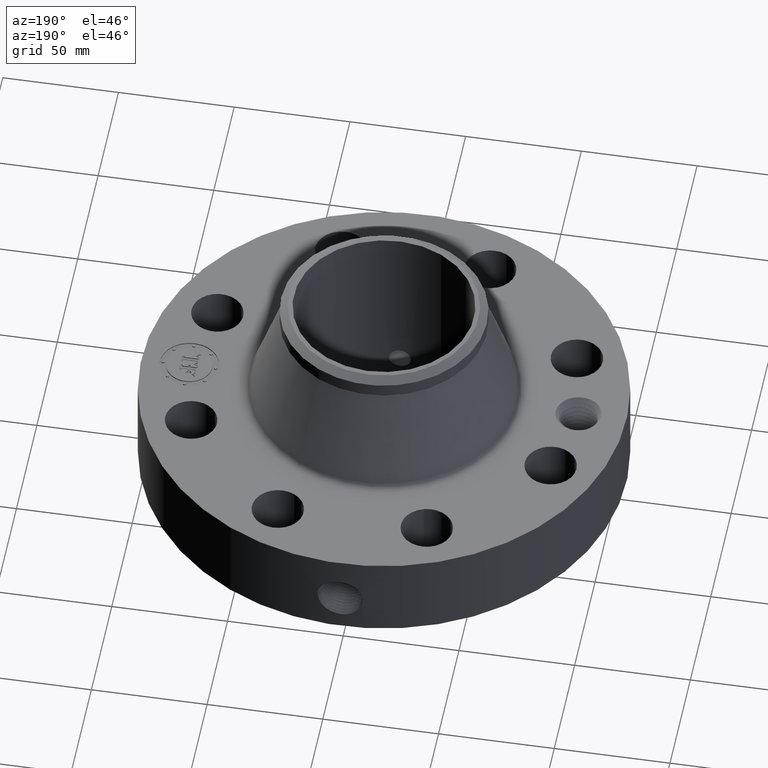
[diagram: clean part render]
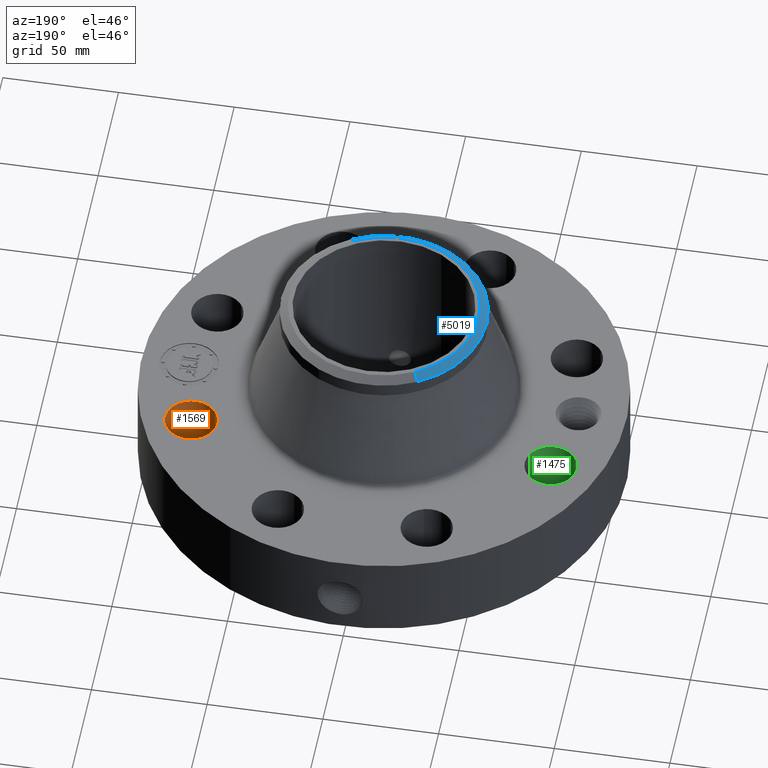
[diagram: same view with three faces highlighted in distinct colors, each labeled with its STEP entity id]
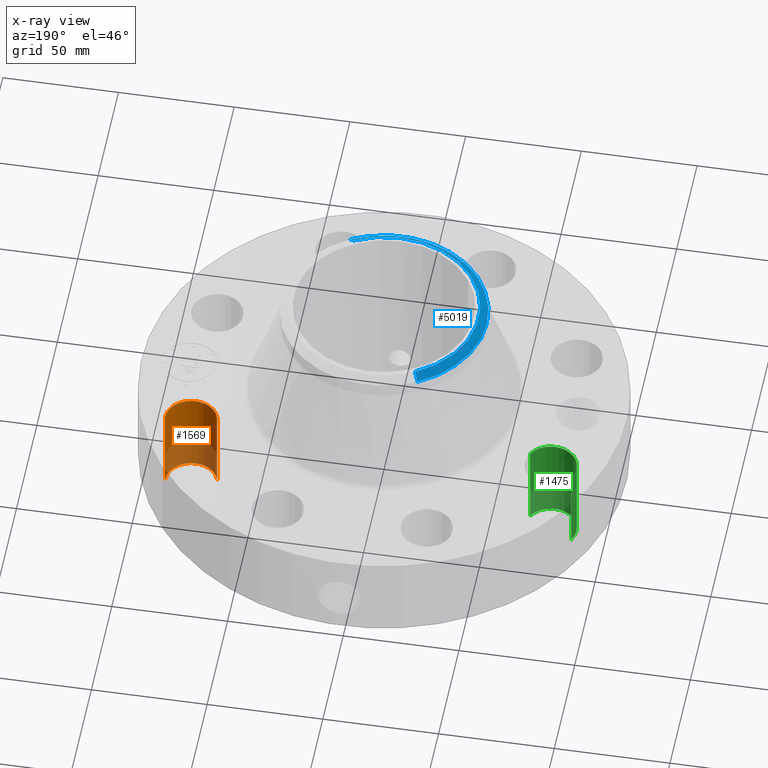
[diagram: x-ray of the same camera — body ghosted, the three highlighted faces saturated]
A machine part, auxiliary view with three faces highlighted in distinct colors.
The next image is the same camera in x-ray (body ghosted, the three faces saturated) — at least one of them is partly hidden behind the body in this view.
Their STEP definitions:

[orange] entity #1569 — the highlighted cylindrical surface (edge-blend (fillet) strip) has radius 11.176 mm, axis along (0, 0, -1).
#377=AXIS2_PLACEMENT_3D('Circle Axis2P3D',#375,#376,$) ;
#685=AXIS2_PLACEMENT_3D('Circle Axis2P3D',#683,#684,$) ;
#1544=AXIS2_PLACEMENT_3D('Cylinder Axis2P3D',#1541,#1542,#1543) ;
#370=CARTESIAN_POINT('Vertex',(2.63583941543,1.14280476743,0.250000000001)) ;
#372=CARTESIAN_POINT('Vertex',(3.48024308982,1.39055955484,0.250000000001)) ;
#375=CARTESIAN_POINT('Axis2P3D Location',(3.05804125262,1.26668216113,0.250000000001)) ;
#683=CARTESIAN_POINT('Axis2P3D Location',(3.05804125262,1.26668216113,1.75000000001)) ;
#687=CARTESIAN_POINT('Vertex',(3.48024308982,1.39055955484,1.75000000001)) ;
#689=CARTESIAN_POINT('Vertex',(2.63583941543,1.14280476743,1.75000000001)) ;
#1541=CARTESIAN_POINT('Axis2P3D Location',(3.05804125262,1.26668216113,1.74606299213)) ;
#1546=CARTESIAN_POINT('Line Origine',(2.63583941543,1.14280476743,1.)) ;
#1551=CARTESIAN_POINT('Line Origine',(3.48024308982,1.39055955484,1.)) ;
#376=DIRECTION('Axis2P3D Direction',(0.,0.,-0.0393700787402)) ;
#684=DIRECTION('Axis2P3D Direction',(0.,0.,-0.0393700787402)) ;
#1542=DIRECTION('Axis2P3D Direction',(0.,0.,-0.0393700787402)) ;
#1543=DIRECTION('Axis2P3D XDirection',(0.0377775444876,0.0110842335096,0.)) ;
#1547=DIRECTION('Vector Direction',(0.,0.,-0.0393700787402)) ;
#1552=DIRECTION('Vector Direction',(0.,0.,-0.0393700787402)) ;
#1548=VECTOR('Line Direction',#1547,0.0393700787402) ;
#1553=VECTOR('Line Direction',#1552,0.0393700787402) ;
#1564=ORIENTED_EDGE('',*,*,#1555,.F.) ;
#1565=ORIENTED_EDGE('',*,*,#379,.T.) ;
#1566=ORIENTED_EDGE('',*,*,#1550,.T.) ;
#1567=ORIENTED_EDGE('',*,*,#691,.F.) ;
#1569=ADVANCED_FACE('PartBody',(#1568),#1545,.F.) ;
#378=CIRCLE('generated circle',#377,0.440000000002) ;
#686=CIRCLE('generated circle',#685,0.440000000002) ;
#1545=CYLINDRICAL_SURFACE('generated cylinder',#1544,0.440000000002) ;
#379=EDGE_CURVE('',#373,#371,#378,.T.) ;
#691=EDGE_CURVE('',#688,#690,#686,.T.) ;
#1550=EDGE_CURVE('',#371,#690,#1549,.F.) ;
#1555=EDGE_CURVE('',#373,#688,#1554,.F.) ;
#1563=EDGE_LOOP('',(#1564,#1565,#1566,#1567)) ;
#1568=FACE_OUTER_BOUND('',#1563,.T.) ;
#1549=LINE('Line',#1546,#1548) ;
#1554=LINE('Line',#1551,#1553) ;
#371=VERTEX_POINT('',#370) ;
#373=VERTEX_POINT('',#372) ;
#688=VERTEX_POINT('',#687) ;
#690=VERTEX_POINT('',#689) ;

[blue] entity #5019 — the highlighted conical surface has half-angle 52.5 deg.
#3738=AXIS2_PLACEMENT_3D('Circle Axis2P3D',#3736,#3737,$) ;
#3751=AXIS2_PLACEMENT_3D('Circle Axis2P3D',#3749,#3750,$) ;
#4593=AXIS2_PLACEMENT_3D('Circle Axis2P3D',#4591,#4592,$) ;
#4992=AXIS2_PLACEMENT_3D('Cone Axis2P3D',#4989,#4990,#4991) ;
#3719=CARTESIAN_POINT('Vertex',(-0.838994692561,-1.53576948331,3.64467681848)) ;
#3733=CARTESIAN_POINT('Vertex',(0.838994692561,-1.53576948331,3.64467681848)) ;
#3736=CARTESIAN_POINT('Axis2P3D Location',(0.,0.,3.64467681848)) ;
#3749=CARTESIAN_POINT('Axis2P3D Location',(0.,0.,3.64467681848)) ;
#3753=CARTESIAN_POINT('Vertex',(-0.838994692561,1.53576948331,3.64467681848)) ;
#4586=CARTESIAN_POINT('Vertex',(0.773188818632,-1.41531263907,3.75000000002)) ;
#4588=CARTESIAN_POINT('Vertex',(-0.773188818632,1.41531263907,3.75000000002)) ;
#4591=CARTESIAN_POINT('Axis2P3D Location',(0.,0.,3.75000000002)) ;
#4989=CARTESIAN_POINT('Axis2P3D Location',(0.,0.,3.75000000002)) ;
#4994=CARTESIAN_POINT('Line Origine',(-0.806091755596,1.47554106119,3.69733840925)) ;
#4999=CARTESIAN_POINT('Line Origine',(0.806091755596,-1.47554106119,3.69733840925)) ;
#3737=DIRECTION('Axis2P3D Direction',(0.,0.,-0.0393700787402)) ;
#3750=DIRECTION('Axis2P3D Direction',(0.,0.,-0.0393700787402)) ;
#4592=DIRECTION('Axis2P3D Direction',(0.,0.,-0.0393700787402)) ;
#4990=DIRECTION('Axis2P3D Direction',(-0.,-0.,-0.0393700787402)) ;
#4991=DIRECTION('Axis2P3D XDirection',(0.0188750212049,-0.0345504945626,0.)) ;
#4995=DIRECTION('Vector Direction',(-0.014974561121,0.02741075027,-0.023966985394)) ;
#5000=DIRECTION('Vector Direction',(0.014974561121,-0.02741075027,-0.023966985394)) ;
#4996=VECTOR('Line Direction',#4995,0.0393700787402) ;
#5001=VECTOR('Line Direction',#5000,0.0393700787402) ;
#5013=ORIENTED_EDGE('',*,*,#5003,.F.) ;
#5014=ORIENTED_EDGE('',*,*,#4595,.F.) ;
#5015=ORIENTED_EDGE('',*,*,#4998,.T.) ;
#5016=ORIENTED_EDGE('',*,*,#3755,.T.) ;
#5017=ORIENTED_EDGE('',*,*,#3740,.F.) ;
#5019=ADVANCED_FACE('PartBody',(#5018),#4993,.T.) ;
#3739=CIRCLE('generated circle',#3738,1.75000000001) ;
#3752=CIRCLE('generated circle',#3751,1.75000000001) ;
#4594=CIRCLE('generated circle',#4593,1.61274015749) ;
#4993=CONICAL_SURFACE('Cone',#4992,1.61274015749,0.916297857297) ;
#3740=EDGE_CURVE('',#3734,#3720,#3739,.T.) ;
#3755=EDGE_CURVE('',#3754,#3720,#3752,.F.) ;
#4595=EDGE_CURVE('',#4589,#4587,#4594,.F.) ;
#4998=EDGE_CURVE('',#4589,#3754,#4997,.T.) ;
#5003=EDGE_CURVE('',#4587,#3734,#5002,.T.) ;
#5012=EDGE_LOOP('',(#5013,#5014,#5015,#5016,#5017)) ;
#5018=FACE_OUTER_BOUND('',#5012,.T.) ;
#4997=LINE('Line',#4994,#4996) ;
#5002=LINE('Line',#4999,#5001) ;
#3720=VERTEX_POINT('',#3719) ;
#3734=VERTEX_POINT('',#3733) ;
#3754=VERTEX_POINT('',#3753) ;
#4587=VERTEX_POINT('',#4586) ;
#4589=VERTEX_POINT('',#4588) ;

[green] entity #1475 — the highlighted cylindrical surface (edge-blend (fillet) strip) has radius 11.176 mm, axis along (-0, 0, -1).
#314=AXIS2_PLACEMENT_3D('Circle Axis2P3D',#312,#313,$) ;
#640=AXIS2_PLACEMENT_3D('Circle Axis2P3D',#638,#639,$) ;
#1457=AXIS2_PLACEMENT_3D('Cylinder Axis2P3D',#1454,#1455,#1456) ;
#312=CARTESIAN_POINT('Axis2P3D Location',(-3.05804125262,1.26668216113,0.250000000001)) ;
#316=CARTESIAN_POINT('Vertex',(-2.67190492539,1.05573492415,0.250000000001)) ;
#318=CARTESIAN_POINT('Vertex',(-3.44417757986,1.47762939812,0.250000000001)) ;
#633=CARTESIAN_POINT('Vertex',(-3.44417757986,1.47762939812,1.75000000001)) ;
#635=CARTESIAN_POINT('Vertex',(-2.67190492539,1.05573492415,1.75000000001)) ;
#638=CARTESIAN_POINT('Axis2P3D Location',(-3.05804125262,1.26668216113,1.75000000001)) ;
#1454=CARTESIAN_POINT('Axis2P3D Location',(-3.05804125262,1.26668216113,1.74606299213)) ;
#1459=CARTESIAN_POINT('Line Origine',(-2.67190492539,1.05573492415,1.)) ;
#1464=CARTESIAN_POINT('Line Origine',(-3.44417757986,1.47762939812,1.)) ;
#313=DIRECTION('Axis2P3D Direction',(0.,0.,-0.0393700787402)) ;
#639=DIRECTION('Axis2P3D Direction',(0.,0.,-0.0393700787402)) ;
#1455=DIRECTION('Axis2P3D Direction',(-0.,0.,-0.0393700787402)) ;
#1456=DIRECTION('Axis2P3D XDirection',(-0.0345504945626,0.0188750212049,0.)) ;
#1460=DIRECTION('Vector Direction',(0.,0.,-0.0393700787402)) ;
#1465=DIRECTION('Vector Direction',(0.,0.,-0.0393700787402)) ;
#1461=VECTOR('Line Direction',#1460,0.0393700787402) ;
#1466=VECTOR('Line Direction',#1465,0.0393700787402) ;
#1470=ORIENTED_EDGE('',*,*,#1463,.F.) ;
#1471=ORIENTED_EDGE('',*,*,#320,.T.) ;
#1472=ORIENTED_EDGE('',*,*,#1468,.T.) ;
#1473=ORIENTED_EDGE('',*,*,#642,.F.) ;
#1475=ADVANCED_FACE('PartBody',(#1474),#1458,.F.) ;
#315=CIRCLE('generated circle',#314,0.440000000002) ;
#641=CIRCLE('generated circle',#640,0.440000000002) ;
#1458=CYLINDRICAL_SURFACE('generated cylinder',#1457,0.440000000002) ;
#320=EDGE_CURVE('',#317,#319,#315,.T.) ;
#642=EDGE_CURVE('',#636,#634,#641,.T.) ;
#1463=EDGE_CURVE('',#317,#636,#1462,.F.) ;
#1468=EDGE_CURVE('',#319,#634,#1467,.F.) ;
#1469=EDGE_LOOP('',(#1470,#1471,#1472,#1473)) ;
#1474=FACE_OUTER_BOUND('',#1469,.T.) ;
#1462=LINE('Line',#1459,#1461) ;
#1467=LINE('Line',#1464,#1466) ;
#317=VERTEX_POINT('',#316) ;
#319=VERTEX_POINT('',#318) ;
#634=VERTEX_POINT('',#633) ;
#636=VERTEX_POINT('',#635) ;